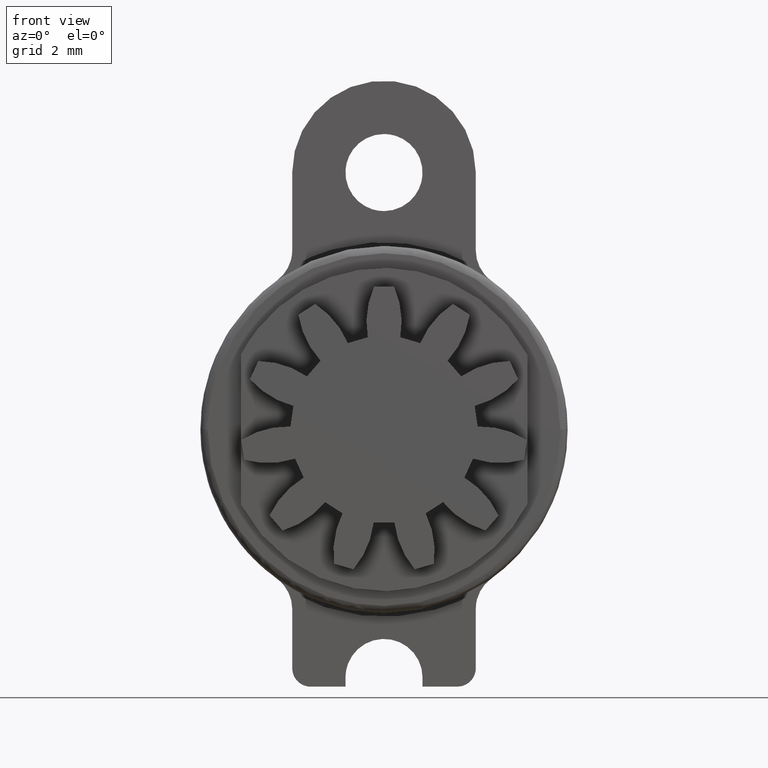
[diagram: clean part render]
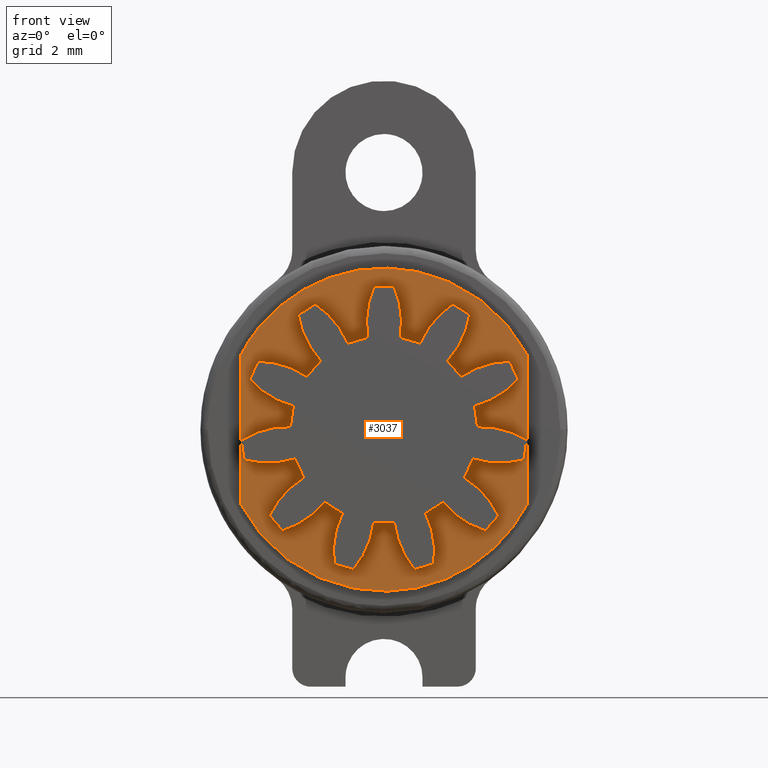
[diagram: same view with one face highlighted and labeled with its STEP entity id]
A machine part, front view. The second image highlights one B-rep face of the part: STEP entity #3037.
In plain terms, the highlighted face is a freeform B-spline surface patch.
Its self-contained STEP definition (entity closure, byte-faithful):
#1064=CARTESIAN_POINT('',(0.442802853050682,-3.200000000000090,2.511259770181130));
#1065=VERTEX_POINT('',#1064);
#1066=CARTESIAN_POINT('',(0.272050247602097,-3.200000000000090,3.890499796013320));
#1067=VERTEX_POINT('',#1066);
#1068=CARTESIAN_POINT('',(0.442802853050683,-3.200000000000090,2.511259770181129));
#1069=CARTESIAN_POINT('',(0.569020483803037,-3.200000000000091,3.227075524782181));
#1070=CARTESIAN_POINT('',(0.272050247602097,-3.200000000000090,3.890499796013320));
#1078=(BOUNDED_CURVE()B_SPLINE_CURVE(2,(#1068,#1069,#1070),.UNSPECIFIED.,.F.,.U.)CURVE()GEOMETRIC_REPRESENTATION_ITEM()QUASI_UNIFORM_CURVE()RATIONAL_B_SPLINE_CURVE((1.0,0.956011273868735,1.0))REPRESENTATION_ITEM(''));
#1079=EDGE_CURVE('',#1065,#1067,#1078,.T.);
#1109=CARTESIAN_POINT('',(0.985180081712992,-3.200000000000090,2.352003445277235));
#1110=VERTEX_POINT('',#1109);
#1111=CARTESIAN_POINT('',(0.985180081712993,-3.200000000000090,2.352003445277238));
#1112=CARTESIAN_POINT('',(0.722872027647809,-3.200000000000090,2.461876018234907));
#1113=CARTESIAN_POINT('',(0.442802853050682,-3.200000000000090,2.511259770181130));
#1121=(BOUNDED_CURVE()B_SPLINE_CURVE(2,(#1111,#1112,#1113),.UNSPECIFIED.,.F.,.U.)CURVE()GEOMETRIC_REPRESENTATION_ITEM()QUASI_UNIFORM_CURVE()RATIONAL_B_SPLINE_CURVE((1.0,0.993838464197460,1.0))REPRESENTATION_ITEM(''));
#1122=EDGE_CURVE('',#1110,#1065,#1121,.T.);
#1148=CARTESIAN_POINT('',(1.874499774403685,-3.200000000000090,3.419978157205185));
#1149=VERTEX_POINT('',#1148);
#1150=CARTESIAN_POINT('',(1.874499774403686,-3.200000000000090,3.419978157205184));
#1151=CARTESIAN_POINT('',(1.265998271843297,-3.200000000000091,3.022424379422156));
#1152=CARTESIAN_POINT('',(0.985180081712992,-3.200000000000090,2.352003445277236));
#1160=(BOUNDED_CURVE()B_SPLINE_CURVE(2,(#1150,#1151,#1152),.UNSPECIFIED.,.F.,.U.)CURVE()GEOMETRIC_REPRESENTATION_ITEM()QUASI_UNIFORM_CURVE()RATIONAL_B_SPLINE_CURVE((1.0,0.956011273868735,1.0))REPRESENTATION_ITEM(''));
#1161=EDGE_CURVE('',#1149,#1110,#1160,.T.);
#1187=CARTESIAN_POINT('',(2.332226236809186,-3.200000000000090,3.125815218521230));
#1188=VERTEX_POINT('',#1187);
#1189=CARTESIAN_POINT('',(2.332226236809184,-3.200000000000090,3.125815218521227));
#1190=CARTESIAN_POINT('',(2.113647943853486,-3.200000000000090,3.288900363992304));
#1191=CARTESIAN_POINT('',(1.874499774403685,-3.200000000000090,3.419978157205183));
#1199=(BOUNDED_CURVE()B_SPLINE_CURVE(2,(#1189,#1190,#1191),.UNSPECIFIED.,.F.,.U.)CURVE()GEOMETRIC_REPRESENTATION_ITEM()QUASI_UNIFORM_CURVE()RATIONAL_B_SPLINE_CURVE((1.0,0.997564050259824,1.0))REPRESENTATION_ITEM(''));
#1200=EDGE_CURVE('',#1188,#1149,#1199,.T.);
#1226=CARTESIAN_POINT('',(1.730199008387150,-3.200000000000090,1.873208848840975));
#1227=VERTEX_POINT('',#1226);
#1228=CARTESIAN_POINT('',(1.730199008387146,-3.200000000000090,1.873208848840979));
#1229=CARTESIAN_POINT('',(2.223379253419823,-3.200000000000090,2.407152975840535));
#1230=CARTESIAN_POINT('',(2.332226236809182,-3.200000000000090,3.125815218521231));
#1238=(BOUNDED_CURVE()B_SPLINE_CURVE(2,(#1228,#1229,#1230),.UNSPECIFIED.,.F.,.U.)CURVE()GEOMETRIC_REPRESENTATION_ITEM()QUASI_UNIFORM_CURVE()RATIONAL_B_SPLINE_CURVE((1.0,0.956011273868735,1.0))REPRESENTATION_ITEM(''));
#1239=EDGE_CURVE('',#1227,#1188,#1238,.T.);
#1265=CARTESIAN_POINT('',(2.100375288840735,-3.200000000000090,1.446002643852080));
#1266=VERTEX_POINT('',#1265);
#1267=CARTESIAN_POINT('',(2.100375288840739,-3.200000000000090,1.446002643852082));
#1268=CARTESIAN_POINT('',(1.939109313049326,-3.200000000000091,1.680247769145035));
#1269=CARTESIAN_POINT('',(1.730199008387153,-3.200000000000090,1.873208848840978));
#1277=(BOUNDED_CURVE()B_SPLINE_CURVE(2,(#1267,#1268,#1269),.UNSPECIFIED.,.F.,.U.)CURVE()GEOMETRIC_REPRESENTATION_ITEM()QUASI_UNIFORM_CURVE()RATIONAL_B_SPLINE_CURVE((1.0,0.993838464487634,1.0))REPRESENTATION_ITEM(''));
#1278=EDGE_CURVE('',#1266,#1227,#1277,.T.);
#1304=CARTESIAN_POINT('',(3.425909343212965,-3.200000000000090,1.863637618231125));
#1305=VERTEX_POINT('',#1304);
#1306=CARTESIAN_POINT('',(3.425909343212966,-3.200000000000090,1.863637618231123));
#1307=CARTESIAN_POINT('',(2.699071505050377,-3.200000000000090,1.858174847602005));
#1308=CARTESIAN_POINT('',(2.100375288840736,-3.200000000000090,1.446002643852079));
#1316=(BOUNDED_CURVE()B_SPLINE_CURVE(2,(#1306,#1307,#1308),.UNSPECIFIED.,.F.,.U.)CURVE()GEOMETRIC_REPRESENTATION_ITEM()QUASI_UNIFORM_CURVE()RATIONAL_B_SPLINE_CURVE((1.0,0.956011273868735,1.0))REPRESENTATION_ITEM(''));
#1317=EDGE_CURVE('',#1305,#1266,#1316,.T.);
#1343=CARTESIAN_POINT('',(3.651936855382260,-3.200000000000090,1.368706398136866));
#1344=VERTEX_POINT('',#1343);
#1345=CARTESIAN_POINT('',(3.651936855382258,-3.200000000000090,1.368706398136865));
#1346=CARTESIAN_POINT('',(3.556227580473862,-3.200000000000091,1.624074699852756));
#1347=CARTESIAN_POINT('',(3.425909343212962,-3.200000000000090,1.863637618231124));
#1355=(BOUNDED_CURVE()B_SPLINE_CURVE(2,(#1345,#1346,#1347),.UNSPECIFIED.,.F.,.U.)CURVE()GEOMETRIC_REPRESENTATION_ITEM()QUASI_UNIFORM_CURVE()RATIONAL_B_SPLINE_CURVE((1.0,0.997564050259824,1.0))REPRESENTATION_ITEM(''));
#1356=EDGE_CURVE('',#1344,#1305,#1355,.T.);
#1382=CARTESIAN_POINT('',(2.468269191304300,-3.200000000000090,0.640427356737704));
#1383=VERTEX_POINT('',#1382);
#1384=CARTESIAN_POINT('',(2.468269191304298,-3.200000000000090,0.640427356737710));
#1385=CARTESIAN_POINT('',(3.171830803970346,-3.200000000000090,0.822976369418024));
#1386=CARTESIAN_POINT('',(3.651936855382259,-3.200000000000090,1.368706398136867));
#1394=(BOUNDED_CURVE()B_SPLINE_CURVE(2,(#1384,#1385,#1386),.UNSPECIFIED.,.F.,.U.)CURVE()GEOMETRIC_REPRESENTATION_ITEM()QUASI_UNIFORM_CURVE()RATIONAL_B_SPLINE_CURVE((1.0,0.956011273868735,1.0))REPRESENTATION_ITEM(''));
#1395=EDGE_CURVE('',#1383,#1344,#1394,.T.);
#1421=CARTESIAN_POINT('',(2.548716183385220,-3.200000000000090,0.080906220714587));
#1422=VERTEX_POINT('',#1421);
#1423=CARTESIAN_POINT('',(2.548716183385219,-3.200000000000090,0.080906220714587));
#1424=CARTESIAN_POINT('',(2.539693087413296,-3.200000000000090,0.365152728891114));
#1425=CARTESIAN_POINT('',(2.468269191304302,-3.200000000000090,0.640427356737704));
#1433=(BOUNDED_CURVE()B_SPLINE_CURVE(2,(#1423,#1424,#1425),.UNSPECIFIED.,.F.,.U.)CURVE()GEOMETRIC_REPRESENTATION_ITEM()QUASI_UNIFORM_CURVE()RATIONAL_B_SPLINE_CURVE((1.0,0.993838464487634,1.0))REPRESENTATION_ITEM(''));
#1434=EDGE_CURVE('',#1422,#1383,#1433,.T.);
#1460=CARTESIAN_POINT('',(3.889616903634106,-3.200000000000090,-0.284394695737951));
#1461=VERTEX_POINT('',#1460);
#1462=CARTESIAN_POINT('',(3.889616903634109,-3.200000000000090,-0.284394695737945));
#1463=CARTESIAN_POINT('',(3.275208607521095,-3.200000000000090,0.103967931860682));
#1464=CARTESIAN_POINT('',(2.548716183385221,-3.200000000000090,0.080906220714588));
#1472=(BOUNDED_CURVE()B_SPLINE_CURVE(2,(#1462,#1463,#1464),.UNSPECIFIED.,.F.,.U.)CURVE()GEOMETRIC_REPRESENTATION_ITEM()QUASI_UNIFORM_CURVE()RATIONAL_B_SPLINE_CURVE((1.0,0.956011273868736,1.0))REPRESENTATION_ITEM(''));
#1473=EDGE_CURVE('',#1461,#1422,#1472,.T.);
#1499=CARTESIAN_POINT('',(3.812183327603870,-3.200000000000090,-0.822957032134209));
#1500=VERTEX_POINT('',#1499);
#1501=CARTESIAN_POINT('',(3.812183327603869,-3.200000000000090,-0.822957032134209));
#1502=CARTESIAN_POINT('',(3.869730089227506,-3.200000000000090,-0.556383205490672));
#1503=CARTESIAN_POINT('',(3.889616903634106,-3.200000000000090,-0.284394695737951));
#1511=(BOUNDED_CURVE()B_SPLINE_CURVE(2,(#1501,#1502,#1503),.UNSPECIFIED.,.F.,.U.)CURVE()GEOMETRIC_REPRESENTATION_ITEM()QUASI_UNIFORM_CURVE()RATIONAL_B_SPLINE_CURVE((1.0,0.997564050259824,1.0))REPRESENTATION_ITEM(''));
#1512=EDGE_CURVE('',#1500,#1461,#1511,.T.);
#1538=CARTESIAN_POINT('',(2.422681347209455,-3.200000000000090,-0.795685295756698));
#1539=VERTEX_POINT('',#1538);
#1540=CARTESIAN_POINT('',(2.422681347209456,-3.200000000000090,-0.795685295756691));
#1541=CARTESIAN_POINT('',(3.113248486978325,-3.200000000000090,-1.022489418997971));
#1542=CARTESIAN_POINT('',(3.812183327603868,-3.200000000000090,-0.822957032134208));
#1550=(BOUNDED_CURVE()B_SPLINE_CURVE(2,(#1540,#1541,#1542),.UNSPECIFIED.,.F.,.U.)CURVE()GEOMETRIC_REPRESENTATION_ITEM()QUASI_UNIFORM_CURVE()RATIONAL_B_SPLINE_CURVE((1.0,0.956011273868736,1.0))REPRESENTATION_ITEM(''));
#1551=EDGE_CURVE('',#1539,#1500,#1550,.T.);
#1577=CARTESIAN_POINT('',(2.187857699384695,-3.200000000000090,-1.309877355802108));
#1578=VERTEX_POINT('',#1577);
#1579=CARTESIAN_POINT('',(2.187857699384698,-3.200000000000090,-1.309877355802110));
#1580=CARTESIAN_POINT('',(2.333942252444555,-3.200000000000090,-1.065875722551902));
#1581=CARTESIAN_POINT('',(2.422681347209454,-3.200000000000090,-0.795685295756697));
#1589=(BOUNDED_CURVE()B_SPLINE_CURVE(2,(#1579,#1580,#1581),.UNSPECIFIED.,.F.,.U.)CURVE()GEOMETRIC_REPRESENTATION_ITEM()QUASI_UNIFORM_CURVE()RATIONAL_B_SPLINE_CURVE((1.0,0.993838464487634,1.0))REPRESENTATION_ITEM(''));
#1590=EDGE_CURVE('',#1578,#1539,#1589,.T.);
#1616=CARTESIAN_POINT('',(3.118398581873130,-3.200000000000090,-2.342133703393490));
#1617=VERTEX_POINT('',#1616);
#1618=CARTESIAN_POINT('',(3.118398581873124,-3.200000000000090,-2.342133703393492));
#1619=CARTESIAN_POINT('',(2.811490120307762,-3.200000000000091,-1.683248067590595));
#1620=CARTESIAN_POINT('',(2.187857699384693,-3.200000000000090,-1.309877355802111));
#1628=(BOUNDED_CURVE()B_SPLINE_CURVE(2,(#1618,#1619,#1620),.UNSPECIFIED.,.F.,.U.)CURVE()GEOMETRIC_REPRESENTATION_ITEM()QUASI_UNIFORM_CURVE()RATIONAL_B_SPLINE_CURVE((1.0,0.956011273868735,1.0))REPRESENTATION_ITEM(''));
#1629=EDGE_CURVE('',#1617,#1578,#1628,.T.);
#1655=CARTESIAN_POINT('',(2.762088530873600,-3.200000000000090,-2.753337419862765));
#1656=VERTEX_POINT('',#1655);
#1657=CARTESIAN_POINT('',(2.762088530873601,-3.200000000000090,-2.753337419862766));
#1658=CARTESIAN_POINT('',(2.954620638849373,-3.200000000000091,-2.560193374593042));
#1659=CARTESIAN_POINT('',(3.118398581873129,-3.200000000000090,-2.342133703393489));
#1667=(BOUNDED_CURVE()B_SPLINE_CURVE(2,(#1657,#1658,#1659),.UNSPECIFIED.,.F.,.U.)CURVE()GEOMETRIC_REPRESENTATION_ITEM()QUASI_UNIFORM_CURVE()RATIONAL_B_SPLINE_CURVE((1.0,0.997564050259824,1.0))REPRESENTATION_ITEM(''));
#1668=EDGE_CURVE('',#1656,#1617,#1667,.T.);
#1694=CARTESIAN_POINT('',(1.607909294470945,-3.200000000000090,-1.979173489301525));
#1695=VERTEX_POINT('',#1694);
#1696=CARTESIAN_POINT('',(1.607909294470949,-3.200000000000090,-1.979173489301520));
#1697=CARTESIAN_POINT('',(2.066231774135703,-3.200000000000090,-2.543322041973382));
#1698=CARTESIAN_POINT('',(2.762088530873599,-3.200000000000090,-2.753337419862766));
#1706=(BOUNDED_CURVE()B_SPLINE_CURVE(2,(#1696,#1697,#1698),.UNSPECIFIED.,.F.,.U.)CURVE()GEOMETRIC_REPRESENTATION_ITEM()QUASI_UNIFORM_CURVE()RATIONAL_B_SPLINE_CURVE((1.0,0.956011273868736,1.0))REPRESENTATION_ITEM(''));
#1707=EDGE_CURVE('',#1695,#1656,#1706,.T.);
#1733=CARTESIAN_POINT('',(1.132369855619404,-3.200000000000090,-2.284784127676945));
#1734=VERTEX_POINT('',#1733);
#1735=CARTESIAN_POINT('',(1.132369855619405,-3.200000000000090,-2.284784127676947));
#1736=CARTESIAN_POINT('',(1.387181244373856,-3.200000000000091,-2.158496163751257));
#1737=CARTESIAN_POINT('',(1.607909294470945,-3.200000000000090,-1.979173489301525));
#1745=(BOUNDED_CURVE()B_SPLINE_CURVE(2,(#1735,#1736,#1737),.UNSPECIFIED.,.F.,.U.)CURVE()GEOMETRIC_REPRESENTATION_ITEM()QUASI_UNIFORM_CURVE()RATIONAL_B_SPLINE_CURVE((1.0,0.993838464487634,1.0))REPRESENTATION_ITEM(''));
#1746=EDGE_CURVE('',#1734,#1695,#1745,.T.);
#1772=CARTESIAN_POINT('',(1.357110745523926,-3.200000000000090,-3.656261810153030));
#1773=VERTEX_POINT('',#1772);
#1774=CARTESIAN_POINT('',(1.357110745523927,-3.200000000000090,-3.656261810153030));
#1775=CARTESIAN_POINT('',(1.455143386383690,-3.200000000000090,-2.936044699710723));
#1776=CARTESIAN_POINT('',(1.132369855619403,-3.200000000000090,-2.284784127676945));
#1784=(BOUNDED_CURVE()B_SPLINE_CURVE(2,(#1774,#1775,#1776),.UNSPECIFIED.,.F.,.U.)CURVE()GEOMETRIC_REPRESENTATION_ITEM()QUASI_UNIFORM_CURVE()RATIONAL_B_SPLINE_CURVE((1.0,0.956011273868736,1.0))REPRESENTATION_ITEM(''));
#1785=EDGE_CURVE('',#1773,#1734,#1784,.T.);
#1811=CARTESIAN_POINT('',(0.835050142997552,-3.200000000000090,-3.809552632354590));
#1812=VERTEX_POINT('',#1811);
#1813=CARTESIAN_POINT('',(0.835050142997552,-3.200000000000090,-3.809552632354589));
#1814=CARTESIAN_POINT('',(1.101440013509115,-3.200000000000091,-3.751160238041799));
#1815=CARTESIAN_POINT('',(1.357110745523926,-3.200000000000090,-3.656261810153030));
#1823=(BOUNDED_CURVE()B_SPLINE_CURVE(2,(#1813,#1814,#1815),.UNSPECIFIED.,.F.,.U.)CURVE()GEOMETRIC_REPRESENTATION_ITEM()QUASI_UNIFORM_CURVE()RATIONAL_B_SPLINE_CURVE((1.0,0.997564050259824,1.0))REPRESENTATION_ITEM(''));
#1824=EDGE_CURVE('',#1812,#1773,#1823,.T.);
#1850=CARTESIAN_POINT('',(0.282637402509670,-3.200000000000090,-2.534288085183410));
#1851=VERTEX_POINT('',#1850);
#1852=CARTESIAN_POINT('',(0.282637402509674,-3.200000000000090,-2.534288085183409));
#1853=CARTESIAN_POINT('',(0.363201073364541,-3.200000000000090,-3.256667888186091));
#1854=CARTESIAN_POINT('',(0.835050142997554,-3.200000000000090,-3.809552632354589));
#1862=(BOUNDED_CURVE()B_SPLINE_CURVE(2,(#1852,#1853,#1854),.UNSPECIFIED.,.F.,.U.)CURVE()GEOMETRIC_REPRESENTATION_ITEM()QUASI_UNIFORM_CURVE()RATIONAL_B_SPLINE_CURVE((1.0,0.956011273868736,1.0))REPRESENTATION_ITEM(''));
#1863=EDGE_CURVE('',#1851,#1812,#1862,.T.);
#1889=CARTESIAN_POINT('',(-0.282637415779163,-3.200000000000090,-2.534288083703520));
#1890=VERTEX_POINT('',#1889);
#1891=CARTESIAN_POINT('',(-0.282637415779164,-3.200000000000090,-2.534288083703523));
#1892=CARTESIAN_POINT('',(-6.717271E-009,-3.200000000000091,-2.565809325275646));
#1893=CARTESIAN_POINT('',(0.282637402509670,-3.200000000000090,-2.534288085183409));
#1901=(BOUNDED_CURVE()B_SPLINE_CURVE(2,(#1891,#1892,#1893),.UNSPECIFIED.,.F.,.U.)CURVE()GEOMETRIC_REPRESENTATION_ITEM()QUASI_UNIFORM_CURVE()RATIONAL_B_SPLINE_CURVE((1.0,0.993838464487634,1.0))REPRESENTATION_ITEM(''));
#1902=EDGE_CURVE('',#1890,#1851,#1901,.T.);
#1928=CARTESIAN_POINT('',(-0.835050162944309,-3.200000000000090,-3.809552627982275));
#1929=VERTEX_POINT('',#1928);
#1930=CARTESIAN_POINT('',(-0.835050162944312,-3.200000000000090,-3.809552627982272));
#1931=CARTESIAN_POINT('',(-0.363201090416403,-3.200000000000090,-3.256667886284371));
#1932=CARTESIAN_POINT('',(-0.282637415779165,-3.200000000000090,-2.534288083703520));
#1940=(BOUNDED_CURVE()B_SPLINE_CURVE(2,(#1930,#1931,#1932),.UNSPECIFIED.,.F.,.U.)CURVE()GEOMETRIC_REPRESENTATION_ITEM()QUASI_UNIFORM_CURVE()RATIONAL_B_SPLINE_CURVE((1.0,0.956011273868736,1.0))REPRESENTATION_ITEM(''));
#1941=EDGE_CURVE('',#1929,#1890,#1940,.T.);
#1967=CARTESIAN_POINT('',(-1.357110764668054,-3.200000000000090,-3.656261803047215));
#1968=VERTEX_POINT('',#1967);
#1969=CARTESIAN_POINT('',(-1.357110764668055,-3.200000000000090,-3.656261803047214));
#1970=CARTESIAN_POINT('',(-1.101440033150133,-3.200000000000090,-3.751160232274671));
#1971=CARTESIAN_POINT('',(-0.835050162944312,-3.200000000000090,-3.809552627982276));
#1979=(BOUNDED_CURVE()B_SPLINE_CURVE(2,(#1969,#1970,#1971),.UNSPECIFIED.,.F.,.U.)CURVE()GEOMETRIC_REPRESENTATION_ITEM()QUASI_UNIFORM_CURVE()RATIONAL_B_SPLINE_CURVE((1.0,0.997564050259825,1.0))REPRESENTATION_ITEM(''));
#1980=EDGE_CURVE('',#1968,#1929,#1979,.T.);
#2006=CARTESIAN_POINT('',(-1.132369867582494,-3.200000000000090,-2.284784121747870));
#2007=VERTEX_POINT('',#2006);
#2008=CARTESIAN_POINT('',(-1.132369867582487,-3.200000000000090,-2.284784121747872));
#2009=CARTESIAN_POINT('',(-1.455143401756768,-3.200000000000090,-2.936044692091610));
#2010=CARTESIAN_POINT('',(-1.357110764668054,-3.200000000000090,-3.656261803047215));
#2018=(BOUNDED_CURVE()B_SPLINE_CURVE(2,(#2008,#2009,#2010),.UNSPECIFIED.,.F.,.U.)CURVE()GEOMETRIC_REPRESENTATION_ITEM()QUASI_UNIFORM_CURVE()RATIONAL_B_SPLINE_CURVE((1.0,0.956011273868736,1.0))REPRESENTATION_ITEM(''));
#2019=EDGE_CURVE('',#2007,#1968,#2018,.T.);
#2045=CARTESIAN_POINT('',(-1.607909304833865,-3.200000000000090,-1.979173480882530));
#2046=VERTEX_POINT('',#2045);
#2047=CARTESIAN_POINT('',(-1.607909304833864,-3.200000000000090,-1.979173480882527));
#2048=CARTESIAN_POINT('',(-1.387181255675706,-3.200000000000091,-2.158496156487989));
#2049=CARTESIAN_POINT('',(-1.132369867582495,-3.200000000000090,-2.284784121747870));
#2057=(BOUNDED_CURVE()B_SPLINE_CURVE(2,(#2047,#2048,#2049),.UNSPECIFIED.,.F.,.U.)CURVE()GEOMETRIC_REPRESENTATION_ITEM()QUASI_UNIFORM_CURVE()RATIONAL_B_SPLINE_CURVE((1.0,0.993838464487633,1.0))REPRESENTATION_ITEM(''));
#2058=EDGE_CURVE('',#2046,#2007,#2057,.T.);
#2084=CARTESIAN_POINT('',(-2.762088545290025,-3.200000000000090,-2.753337405400505));
#2085=VERTEX_POINT('',#2084);
#2086=CARTESIAN_POINT('',(-2.762088545290025,-3.200000000000090,-2.753337405400504));
#2087=CARTESIAN_POINT('',(-2.066231787452495,-3.200000000000090,-2.543322031154616));
#2088=CARTESIAN_POINT('',(-1.607909304833866,-3.200000000000090,-1.979173480882529));
#2096=(BOUNDED_CURVE()B_SPLINE_CURVE(2,(#2086,#2087,#2088),.UNSPECIFIED.,.F.,.U.)CURVE()GEOMETRIC_REPRESENTATION_ITEM()QUASI_UNIFORM_CURVE()RATIONAL_B_SPLINE_CURVE((1.0,0.956011273868736,1.0))REPRESENTATION_ITEM(''));
#2097=EDGE_CURVE('',#2085,#2046,#2096,.T.);
#2123=CARTESIAN_POINT('',(-3.118398594136500,-3.200000000000090,-2.342133687065595));
#2124=VERTEX_POINT('',#2123);
#2125=CARTESIAN_POINT('',(-3.118398594136497,-3.200000000000090,-2.342133687065594));
#2126=CARTESIAN_POINT('',(-2.954620652254501,-3.200000000000090,-2.560193359122683));
#2127=CARTESIAN_POINT('',(-2.762088545290026,-3.200000000000090,-2.753337405400505));
#2135=(BOUNDED_CURVE()B_SPLINE_CURVE(2,(#2125,#2126,#2127),.UNSPECIFIED.,.F.,.U.)CURVE()GEOMETRIC_REPRESENTATION_ITEM()QUASI_UNIFORM_CURVE()RATIONAL_B_SPLINE_CURVE((1.0,0.997564050259824,1.0))REPRESENTATION_ITEM(''));
#2136=EDGE_CURVE('',#2124,#2085,#2135,.T.);
#2162=CARTESIAN_POINT('',(-2.187857706243190,-3.200000000000090,-1.309877344346510));
#2163=VERTEX_POINT('',#2162);
#2164=CARTESIAN_POINT('',(-2.187857706243185,-3.200000000000090,-1.309877344346515));
#2165=CARTESIAN_POINT('',(-2.811490129121217,-3.200000000000091,-1.683248052869668));
#2166=CARTESIAN_POINT('',(-3.118398594136496,-3.200000000000090,-2.342133687065596));
#2174=(BOUNDED_CURVE()B_SPLINE_CURVE(2,(#2164,#2165,#2166),.UNSPECIFIED.,.F.,.U.)CURVE()GEOMETRIC_REPRESENTATION_ITEM()QUASI_UNIFORM_CURVE()RATIONAL_B_SPLINE_CURVE((1.0,0.956011273868735,1.0))REPRESENTATION_ITEM(''));
#2175=EDGE_CURVE('',#2163,#2124,#2174,.T.);
#2201=CARTESIAN_POINT('',(-2.422681351375640,-3.200000000000090,-0.795685283071563));
#2202=VERTEX_POINT('',#2201);
#2203=CARTESIAN_POINT('',(-2.422681351375640,-3.200000000000090,-0.795685283071561));
#2204=CARTESIAN_POINT('',(-2.333942258025456,-3.200000000000090,-1.065875710331404));
#2205=CARTESIAN_POINT('',(-2.187857706243189,-3.200000000000090,-1.309877344346509));
#2213=(BOUNDED_CURVE()B_SPLINE_CURVE(2,(#2203,#2204,#2205),.UNSPECIFIED.,.F.,.U.)CURVE()GEOMETRIC_REPRESENTATION_ITEM()QUASI_UNIFORM_CURVE()RATIONAL_B_SPLINE_CURVE((1.0,0.993838464487634,1.0))REPRESENTATION_ITEM(''));
#2214=EDGE_CURVE('',#2202,#2163,#2213,.T.);
#2240=CARTESIAN_POINT('',(-3.812183331912850,-3.200000000000090,-0.822957012173662));
#2241=VERTEX_POINT('',#2240);
#2242=CARTESIAN_POINT('',(-3.812183331912851,-3.200000000000090,-0.822957012173661));
#2243=CARTESIAN_POINT('',(-3.113248492332056,-3.200000000000091,-1.022489402697042));
#2244=CARTESIAN_POINT('',(-2.422681351375641,-3.200000000000090,-0.795685283071563));
#2252=(BOUNDED_CURVE()B_SPLINE_CURVE(2,(#2242,#2243,#2244),.UNSPECIFIED.,.F.,.U.)CURVE()GEOMETRIC_REPRESENTATION_ITEM()QUASI_UNIFORM_CURVE()RATIONAL_B_SPLINE_CURVE((1.0,0.956011273868735,1.0))REPRESENTATION_ITEM(''));
#2253=EDGE_CURVE('',#2241,#2202,#2252,.T.);
#2279=CARTESIAN_POINT('',(-3.889616905123185,-3.200000000000090,-0.284394675371960));
#2280=VERTEX_POINT('',#2279);
#2281=CARTESIAN_POINT('',(-3.889616905123180,-3.200000000000090,-0.284394675371959));
#2282=CARTESIAN_POINT('',(-3.869730092140709,-3.200000000000091,-0.556383185228808));
#2283=CARTESIAN_POINT('',(-3.812183331912849,-3.200000000000090,-0.822957012173660));
#2291=(BOUNDED_CURVE()B_SPLINE_CURVE(2,(#2281,#2282,#2283),.UNSPECIFIED.,.F.,.U.)CURVE()GEOMETRIC_REPRESENTATION_ITEM()QUASI_UNIFORM_CURVE()RATIONAL_B_SPLINE_CURVE((1.0,0.997564050259824,1.0))REPRESENTATION_ITEM(''));
#2292=EDGE_CURVE('',#2280,#2241,#2291,.T.);
#2318=CARTESIAN_POINT('',(-2.548716182961580,-3.200000000000090,0.080906234059634));
#2319=VERTEX_POINT('',#2318);
#2320=CARTESIAN_POINT('',(-2.548716182961580,-3.200000000000090,0.080906234059630));
#2321=CARTESIAN_POINT('',(-3.275208606976707,-3.200000000000090,0.103967949009631));
#2322=CARTESIAN_POINT('',(-3.889616905123182,-3.200000000000090,-0.284394675371964));
#2330=(BOUNDED_CURVE()B_SPLINE_CURVE(2,(#2320,#2321,#2322),.UNSPECIFIED.,.F.,.U.)CURVE()GEOMETRIC_REPRESENTATION_ITEM()QUASI_UNIFORM_CURVE()RATIONAL_B_SPLINE_CURVE((1.0,0.956011273868735,1.0))REPRESENTATION_ITEM(''));
#2331=EDGE_CURVE('',#2319,#2280,#2330,.T.);
#2357=CARTESIAN_POINT('',(-2.468269187951015,-3.200000000000090,0.640427369661539));
#2358=VERTEX_POINT('',#2357);
#2359=CARTESIAN_POINT('',(-2.468269187951016,-3.200000000000090,0.640427369661541));
#2360=CARTESIAN_POINT('',(-2.539693085501345,-3.200000000000091,0.365152742188922));
#2361=CARTESIAN_POINT('',(-2.548716182961581,-3.200000000000090,0.080906234059635));
#2369=(BOUNDED_CURVE()B_SPLINE_CURVE(2,(#2359,#2360,#2361),.UNSPECIFIED.,.F.,.U.)CURVE()GEOMETRIC_REPRESENTATION_ITEM()QUASI_UNIFORM_CURVE()RATIONAL_B_SPLINE_CURVE((1.0,0.993838464487633,1.0))REPRESENTATION_ITEM(''));
#2370=EDGE_CURVE('',#2358,#2319,#2369,.T.);
#2396=CARTESIAN_POINT('',(-3.651936848215715,-3.200000000000090,1.368706417258362));
#2397=VERTEX_POINT('',#2396);
#2398=CARTESIAN_POINT('',(-3.651936848215715,-3.200000000000090,1.368706417258364));
#2399=CARTESIAN_POINT('',(-3.171830799661239,-3.200000000000091,0.822976386025692));
#2400=CARTESIAN_POINT('',(-2.468269187951016,-3.200000000000090,0.640427369661537));
#2408=(BOUNDED_CURVE()B_SPLINE_CURVE(2,(#2398,#2399,#2400),.UNSPECIFIED.,.F.,.U.)CURVE()GEOMETRIC_REPRESENTATION_ITEM()QUASI_UNIFORM_CURVE()RATIONAL_B_SPLINE_CURVE((1.0,0.956011273868735,1.0))REPRESENTATION_ITEM(''));
#2409=EDGE_CURVE('',#2397,#2358,#2408,.T.);
#2435=CARTESIAN_POINT('',(-3.425909333454970,-3.200000000000090,1.863637636169145));
#2436=VERTEX_POINT('',#2435);
#2437=CARTESIAN_POINT('',(-3.425909333454964,-3.200000000000090,1.863637636169144));
#2438=CARTESIAN_POINT('',(-3.556227571970211,-3.200000000000091,1.624074718473123));
#2439=CARTESIAN_POINT('',(-3.651936848215714,-3.200000000000090,1.368706417258363));
#2447=(BOUNDED_CURVE()B_SPLINE_CURVE(2,(#2437,#2438,#2439),.UNSPECIFIED.,.F.,.U.)CURVE()GEOMETRIC_REPRESENTATION_ITEM()QUASI_UNIFORM_CURVE()RATIONAL_B_SPLINE_CURVE((1.0,0.997564050259824,1.0))REPRESENTATION_ITEM(''));
#2448=EDGE_CURVE('',#2436,#2397,#2447,.T.);
#2474=CARTESIAN_POINT('',(-2.100375281269475,-3.200000000000090,1.446002654849620));
#2475=VERTEX_POINT('',#2474);
#2476=CARTESIAN_POINT('',(-2.100375281269475,-3.200000000000090,1.446002654849619));
#2477=CARTESIAN_POINT('',(-2.699071495320986,-3.200000000000091,1.858174861734311));
#2478=CARTESIAN_POINT('',(-3.425909333454970,-3.200000000000090,1.863637636169146));
#2486=(BOUNDED_CURVE()B_SPLINE_CURVE(2,(#2476,#2477,#2478),.UNSPECIFIED.,.F.,.U.)CURVE()GEOMETRIC_REPRESENTATION_ITEM()QUASI_UNIFORM_CURVE()RATIONAL_B_SPLINE_CURVE((1.0,0.956011273868735,1.0))REPRESENTATION_ITEM(''));
#2487=EDGE_CURVE('',#2475,#2436,#2486,.T.);
#2513=CARTESIAN_POINT('',(-1.730198998579035,-3.200000000000090,1.873208857900280));
#2514=VERTEX_POINT('',#2513);
#2515=CARTESIAN_POINT('',(-1.730198998579036,-3.200000000000090,1.873208857900282));
#2516=CARTESIAN_POINT('',(-1.939109304251554,-3.200000000000091,1.680247779298189));
#2517=CARTESIAN_POINT('',(-2.100375281269475,-3.200000000000090,1.446002654849619));
#2525=(BOUNDED_CURVE()B_SPLINE_CURVE(2,(#2515,#2516,#2517),.UNSPECIFIED.,.F.,.U.)CURVE()GEOMETRIC_REPRESENTATION_ITEM()QUASI_UNIFORM_CURVE()RATIONAL_B_SPLINE_CURVE((1.0,0.993838464487633,1.0))REPRESENTATION_ITEM(''));
#2526=EDGE_CURVE('',#2514,#2475,#2525,.T.);
#2552=CARTESIAN_POINT('',(-2.332226220442440,-3.200000000000090,3.125815230732735));
#2553=VERTEX_POINT('',#2552);
#2554=CARTESIAN_POINT('',(-2.332226220442437,-3.200000000000090,3.125815230732736));
#2555=CARTESIAN_POINT('',(-2.223379240815983,-3.200000000000090,2.407152987482124));
#2556=CARTESIAN_POINT('',(-1.730198998579035,-3.200000000000090,1.873208857900282));
#2564=(BOUNDED_CURVE()B_SPLINE_CURVE(2,(#2554,#2555,#2556),.UNSPECIFIED.,.F.,.U.)CURVE()GEOMETRIC_REPRESENTATION_ITEM()QUASI_UNIFORM_CURVE()RATIONAL_B_SPLINE_CURVE((1.0,0.956011273868736,1.0))REPRESENTATION_ITEM(''));
#2565=EDGE_CURVE('',#2553,#2514,#2564,.T.);
#2591=CARTESIAN_POINT('',(-1.874499756496710,-3.200000000000090,3.419978167020045));
#2592=VERTEX_POINT('',#2591);
#2593=CARTESIAN_POINT('',(-1.874499756496706,-3.200000000000090,3.419978167020041));
#2594=CARTESIAN_POINT('',(-2.113647926632828,-3.200000000000091,3.288900375059340));
#2595=CARTESIAN_POINT('',(-2.332226220442439,-3.200000000000090,3.125815230732735));
#2603=(BOUNDED_CURVE()B_SPLINE_CURVE(2,(#2593,#2594,#2595),.UNSPECIFIED.,.F.,.U.)CURVE()GEOMETRIC_REPRESENTATION_ITEM()QUASI_UNIFORM_CURVE()RATIONAL_B_SPLINE_CURVE((1.0,0.997564050259824,1.0))REPRESENTATION_ITEM(''));
#2604=EDGE_CURVE('',#2592,#2553,#2603,.T.);
#2630=CARTESIAN_POINT('',(-0.985180069397917,-3.200000000000090,2.352003450435630));
#2631=VERTEX_POINT('',#2630);
#2632=CARTESIAN_POINT('',(-0.985180069397921,-3.200000000000090,2.352003450435628));
#2633=CARTESIAN_POINT('',(-1.265998256017910,-3.200000000000091,3.022424386050909));
#2634=CARTESIAN_POINT('',(-1.874499756496711,-3.200000000000090,3.419978167020042));
#2642=(BOUNDED_CURVE()B_SPLINE_CURVE(2,(#2632,#2633,#2634),.UNSPECIFIED.,.F.,.U.)CURVE()GEOMETRIC_REPRESENTATION_ITEM()QUASI_UNIFORM_CURVE()RATIONAL_B_SPLINE_CURVE((1.0,0.956011273868735,1.0))REPRESENTATION_ITEM(''));
#2643=EDGE_CURVE('',#2631,#2592,#2642,.T.);
#2669=CARTESIAN_POINT('',(-0.442802853050668,-3.200000000000090,2.511259770181130));
#2670=VERTEX_POINT('',#2669);
#2671=CARTESIAN_POINT('',(-0.442802853050667,-3.200000000000090,2.511259770181130));
#2672=CARTESIAN_POINT('',(-0.722872020991560,-3.200000000000090,2.461876019408581));
#2673=CARTESIAN_POINT('',(-0.985180069397916,-3.200000000000090,2.352003450435629));
#2681=(BOUNDED_CURVE()B_SPLINE_CURVE(2,(#2671,#2672,#2673),.UNSPECIFIED.,.F.,.U.)CURVE()GEOMETRIC_REPRESENTATION_ITEM()QUASI_UNIFORM_CURVE()RATIONAL_B_SPLINE_CURVE((1.0,0.993838464487634,1.0))REPRESENTATION_ITEM(''));
#2682=EDGE_CURVE('',#2670,#2631,#2681,.T.);
#2708=CARTESIAN_POINT('',(-0.272050247602082,-3.200000000000090,3.890499796013320));
#2709=VERTEX_POINT('',#2708);
#2710=CARTESIAN_POINT('',(-0.272050247602082,-3.200000000000090,3.890499796013319));
#2711=CARTESIAN_POINT('',(-0.569020483803022,-3.200000000000090,3.227075524782181));
#2712=CARTESIAN_POINT('',(-0.442802853050668,-3.200000000000090,2.511259770181130));
#2720=(BOUNDED_CURVE()B_SPLINE_CURVE(2,(#2710,#2711,#2712),.UNSPECIFIED.,.F.,.U.)CURVE()GEOMETRIC_REPRESENTATION_ITEM()QUASI_UNIFORM_CURVE()RATIONAL_B_SPLINE_CURVE((1.0,0.956011273868735,1.0))REPRESENTATION_ITEM(''));
#2721=EDGE_CURVE('',#2709,#2670,#2720,.T.);
#2747=CARTESIAN_POINT('',(0.272050247602097,-3.200000000000090,3.890499796013314));
#2748=CARTESIAN_POINT('',(8.135419E-015,-3.200000000000090,3.909523402516572));
#2749=CARTESIAN_POINT('',(-0.272050247602082,-3.200000000000090,3.890499796013314));
#2757=(BOUNDED_CURVE()B_SPLINE_CURVE(2,(#2747,#2748,#2749),.UNSPECIFIED.,.F.,.U.)CURVE()GEOMETRIC_REPRESENTATION_ITEM()QUASI_UNIFORM_CURVE()RATIONAL_B_SPLINE_CURVE((1.0,0.997564050259824,1.0))REPRESENTATION_ITEM(''));
#2758=EDGE_CURVE('',#1067,#2709,#2757,.T.);
#2855=CARTESIAN_POINT('',(3.900000000000000,-3.200000000000000,-2.037154878746350));
#2856=VERTEX_POINT('',#2855);
#2862=CARTESIAN_POINT('',(-3.900000000000000,-3.200000000000000,-2.037154878746285));
#2863=VERTEX_POINT('',#2862);
#2864=CARTESIAN_POINT('',(-3.900000000000000,-3.200000000000000,-2.037154878746285));
#2865=CARTESIAN_POINT('',(-3.790204149506855,-3.200000000000001,-2.247387022251656));
#2866=CARTESIAN_POINT('',(-3.563195489161300,-3.199999999999995,-2.607640112427215));
#2867=CARTESIAN_POINT('',(-3.173237379424208,-3.200000000000014,-3.064174300549196));
#2868=CARTESIAN_POINT('',(-2.804000665603357,-3.199999999999986,-3.401628091461490));
#2869=CARTESIAN_POINT('',(-2.320771422985783,-3.200000000000000,-3.757029207991256));
#2870=CARTESIAN_POINT('',(-1.767242255965638,-3.200000000000025,-4.051844944892227));
#2871=CARTESIAN_POINT('',(-1.138466356925190,-3.199999999999978,-4.262568222593181));
#2872=CARTESIAN_POINT('',(-0.598746560191808,-3.200000000000038,-4.369589400397649));
#2873=CARTESIAN_POINT('',(0.024679530153842,-3.200000000000025,-4.417467674342158));
#2874=CARTESIAN_POINT('',(0.699732862520616,-3.200000000000013,-4.365655958858134));
#2875=CARTESIAN_POINT('',(1.306742820915761,-3.199999999999987,-4.212691384087964));
#2876=CARTESIAN_POINT('',(1.785085301477982,-3.199999999999986,-4.029358136943121));
#2877=CARTESIAN_POINT('',(2.176424875352241,-3.199999999999950,-3.833587196077382));
#2878=CARTESIAN_POINT('',(2.639382349451916,-3.200000000000027,-3.536698606588382));
#2879=CARTESIAN_POINT('',(3.031391568556030,-3.199999999999992,-3.205053198319252));
#2880=CARTESIAN_POINT('',(3.497399513514123,-3.200000000000005,-2.700003377000582));
#2881=CARTESIAN_POINT('',(3.749786392851942,-3.200000000000001,-2.324868116256397));
#2882=CARTESIAN_POINT('',(3.900000000000000,-3.200000000000000,-2.037154878746350));
#2883=B_SPLINE_CURVE_WITH_KNOTS('',3,(#2864,#2865,#2866,#2867,#2868,#2869,#2870,#2871,#2872,#2873,#2874,#2875,#2876,#2877,#2878,#2879,#2880,#2881,#2882),.UNSPECIFIED.,.F.,.U.,(4,1,1,1,1,1,1,1,1,1,1,1,1,1,1,1,4),(5.174538E-009,0.711528835385177,1.273274207783755,1.797564177075412,2.209508540382098,3.070846188380292,3.670037881020955,4.194330340818956,4.718615851593230,5.542491125048795,6.216583452395068,6.591074839738587,7.077918437013276,7.527311879230348,8.238847368518826,8.613344609911616,9.587022108607123),.UNSPECIFIED.);
#2884=EDGE_CURVE('',#2863,#2856,#2883,.T.);
#2900=CARTESIAN_POINT('',(3.900000000000000,-3.200000000000000,2.037154878746280));
#2901=VERTEX_POINT('',#2900);
#2907=CARTESIAN_POINT('',(3.900000000000000,-3.200000000000000,2.037154878746280));
#2908=CARTESIAN_POINT('',(3.900000000000000,-3.200000000000000,-2.037154878746350));
#2909=QUASI_UNIFORM_CURVE('',1,(#2907,#2908),.UNSPECIFIED.,.F.,.U.);
#2910=EDGE_CURVE('',#2901,#2856,#2909,.T.);
#2931=CARTESIAN_POINT('',(-3.900000000000000,-3.200000000000000,2.037154878746280));
#2932=VERTEX_POINT('',#2931);
#2938=CARTESIAN_POINT('',(3.900000000000000,-3.200000000000000,2.037154878746280));
#2939=CARTESIAN_POINT('',(3.744009218019414,-3.200000000000005,2.335931408357343));
#2940=CARTESIAN_POINT('',(3.433447963852460,-3.199999999999990,2.793345751617985));
#2941=CARTESIAN_POINT('',(2.929926814577420,-3.200000000000013,3.298725264136790));
#2942=CARTESIAN_POINT('',(2.475465192110407,-3.199999999999986,3.651155248507165));
#2943=CARTESIAN_POINT('',(1.926918984982538,-3.200000000000015,3.977180476421069));
#2944=CARTESIAN_POINT('',(1.261789349744241,-3.199999999999960,4.238605031029682));
#2945=CARTESIAN_POINT('',(0.586700125328697,-3.200000000000078,4.375438384109794));
#2946=CARTESIAN_POINT('',(0.024965857774694,-3.199999999999863,4.408929830727637));
#2947=CARTESIAN_POINT('',(-0.549255052911507,-3.200000000000126,4.379601651517005));
#2948=CARTESIAN_POINT('',(-1.066243481692744,-3.199999999999901,4.281649616343383));
#2949=CARTESIAN_POINT('',(-1.577079237543175,-3.200000000000195,4.115224149943711));
#2950=CARTESIAN_POINT('',(-2.023713691043446,-3.199999999999533,3.919628971094461));
#2951=CARTESIAN_POINT('',(-2.496981170823926,-3.200000000000153,3.638376961659677));
#2952=CARTESIAN_POINT('',(-2.919194779692226,-3.199999999999995,3.305154520011136));
#2953=CARTESIAN_POINT('',(-3.300147137779390,-3.199999999999989,2.926004025758720));
#2954=CARTESIAN_POINT('',(-3.625905574747389,-3.200000000000007,2.513651404165786));
#2955=CARTESIAN_POINT('',(-3.819090939868413,-3.199999999999998,2.192057948247656));
#2956=CARTESIAN_POINT('',(-3.900000000000000,-3.200000000000000,2.037154878746280));
#2957=B_SPLINE_CURVE_WITH_KNOTS('',3,(#2938,#2939,#2940,#2941,#2942,#2943,#2944,#2945,#2946,#2947,#2948,#2949,#2950,#2951,#2952,#2953,#2954,#2955,#2956),.UNSPECIFIED.,.F.,.U.,(4,1,1,1,1,1,1,1,1,1,1,1,1,1,1,1,4),(5.172488E-009,1.011125325589003,1.647767283427259,2.134609464630447,2.733800332578761,3.557689555420075,4.269229201109330,4.793511056520869,5.242895967975481,5.991886799693385,6.366379378457284,6.853221285897498,7.452412769952961,8.014153786670359,8.463545867367076,9.062738597350204,9.587022108607183),.UNSPECIFIED.);
#2958=EDGE_CURVE('',#2901,#2932,#2957,.T.);
#2971=CARTESIAN_POINT('',(-3.900000000000000,-3.200000000000000,-2.037154878746285));
#2972=CARTESIAN_POINT('',(-3.900000000000000,-3.200000000000000,2.037154878746280));
#2973=QUASI_UNIFORM_CURVE('',1,(#2971,#2972),.UNSPECIFIED.,.F.,.U.);
#2974=EDGE_CURVE('',#2863,#2932,#2973,.T.);
#2980=CARTESIAN_POINT('',(-4.289609984882087,-3.200000000000000,4.839559982943892));
#2981=CARTESIAN_POINT('',(4.289610194094390,-3.200000000000000,4.839559982943892));
#2982=CARTESIAN_POINT('',(-4.289609984882087,-3.200000000000000,-4.839560218978287));
#2983=CARTESIAN_POINT('',(4.289610194094390,-3.200000000000000,-4.839560218978287));
#2984=B_SPLINE_SURFACE_WITH_KNOTS('',1,1,((#2980,#2982),(#2981,#2983)),.UNSPECIFIED.,.F.,.F.,.U.,(2,2),(2,2),(0.0,8.579220178976478),(0.0,9.679120201922178),.UNSPECIFIED.);
#2985=ORIENTED_EDGE('',*,*,#2974,.F.);
#2986=ORIENTED_EDGE('',*,*,#2884,.T.);
#2987=ORIENTED_EDGE('',*,*,#2910,.F.);
#2988=ORIENTED_EDGE('',*,*,#2958,.T.);
#2989=EDGE_LOOP('',(#2985,#2986,#2987,#2988));
#2990=FACE_OUTER_BOUND('',#2989,.T.);
#2991=ORIENTED_EDGE('',*,*,#2721,.F.);
#2992=ORIENTED_EDGE('',*,*,#2758,.F.);
#2993=ORIENTED_EDGE('',*,*,#1079,.F.);
#2994=ORIENTED_EDGE('',*,*,#1122,.F.);
#2995=ORIENTED_EDGE('',*,*,#1161,.F.);
#2996=ORIENTED_EDGE('',*,*,#1200,.F.);
#2997=ORIENTED_EDGE('',*,*,#1239,.F.);
#2998=ORIENTED_EDGE('',*,*,#1278,.F.);
#2999=ORIENTED_EDGE('',*,*,#1317,.F.);
#3000=ORIENTED_EDGE('',*,*,#1356,.F.);
#3001=ORIENTED_EDGE('',*,*,#1395,.F.);
#3002=ORIENTED_EDGE('',*,*,#1434,.F.);
#3003=ORIENTED_EDGE('',*,*,#1473,.F.);
#3004=ORIENTED_EDGE('',*,*,#1512,.F.);
#3005=ORIENTED_EDGE('',*,*,#1551,.F.);
#3006=ORIENTED_EDGE('',*,*,#1590,.F.);
#3007=ORIENTED_EDGE('',*,*,#1629,.F.);
#3008=ORIENTED_EDGE('',*,*,#1668,.F.);
#3009=ORIENTED_EDGE('',*,*,#1707,.F.);
#3010=ORIENTED_EDGE('',*,*,#1746,.F.);
#3011=ORIENTED_EDGE('',*,*,#1785,.F.);
#3012=ORIENTED_EDGE('',*,*,#1824,.F.);
#3013=ORIENTED_EDGE('',*,*,#1863,.F.);
#3014=ORIENTED_EDGE('',*,*,#1902,.F.);
#3015=ORIENTED_EDGE('',*,*,#1941,.F.);
#3016=ORIENTED_EDGE('',*,*,#1980,.F.);
#3017=ORIENTED_EDGE('',*,*,#2019,.F.);
#3018=ORIENTED_EDGE('',*,*,#2058,.F.);
#3019=ORIENTED_EDGE('',*,*,#2097,.F.);
#3020=ORIENTED_EDGE('',*,*,#2136,.F.);
#3021=ORIENTED_EDGE('',*,*,#2175,.F.);
#3022=ORIENTED_EDGE('',*,*,#2214,.F.);
#3023=ORIENTED_EDGE('',*,*,#2253,.F.);
#3024=ORIENTED_EDGE('',*,*,#2292,.F.);
#3025=ORIENTED_EDGE('',*,*,#2331,.F.);
#3026=ORIENTED_EDGE('',*,*,#2370,.F.);
#3027=ORIENTED_EDGE('',*,*,#2409,.F.);
#3028=ORIENTED_EDGE('',*,*,#2448,.F.);
#3029=ORIENTED_EDGE('',*,*,#2487,.F.);
#3030=ORIENTED_EDGE('',*,*,#2526,.F.);
#3031=ORIENTED_EDGE('',*,*,#2565,.F.);
#3032=ORIENTED_EDGE('',*,*,#2604,.F.);
#3033=ORIENTED_EDGE('',*,*,#2643,.F.);
#3034=ORIENTED_EDGE('',*,*,#2682,.F.);
#3035=EDGE_LOOP('',(#2991,#2992,#2993,#2994,#2995,#2996,#2997,#2998,#2999,#3000,#3001,#3002,#3003,#3004,#3005,#3006,#3007,#3008,#3009,#3010,#3011,#3012,#3013,#3014,#3015,#3016,#3017,#3018,#3019,#3020,#3021,#3022,#3023,#3024,#3025,#3026,#3027,#3028,#3029,#3030,#3031,#3032,#3033,#3034));
#3036=FACE_BOUND('',#3035,.T.);
#3037=ADVANCED_FACE('',(#2990,#3036),#2984,.F.);